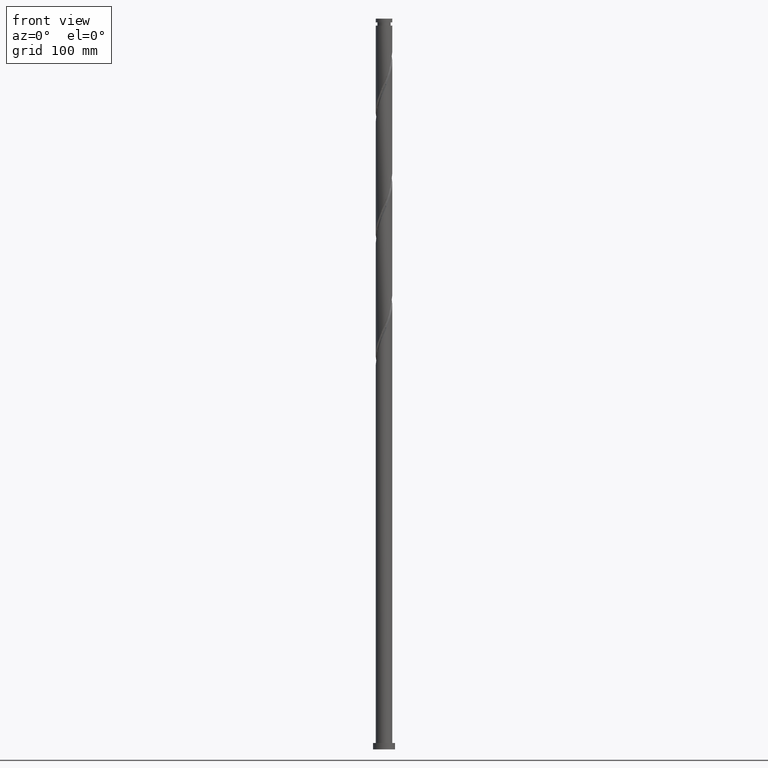
[diagram: clean part render]
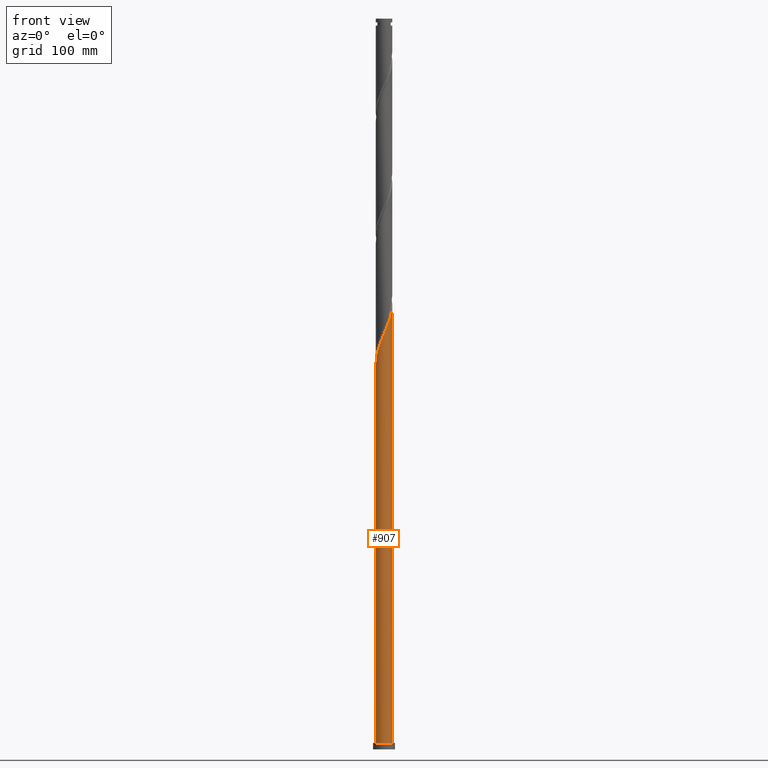
[diagram: same view with one face highlighted and labeled with its STEP entity id]
A machine part, front view. The second image highlights one B-rep face of the part: STEP entity #907.
In plain terms, the highlighted cylindrical surface (edge-blend (fillet) strip) has radius 9 mm, axis along (-0, -0, -1).
Its self-contained STEP definition (entity closure, byte-faithful):
#13 = CARTESIAN_POINT ( 'NONE',  ( -6.928210819915963548, -5.792758815519967186, 436.1767235916865388 ) ) ;
#29 = CARTESIAN_POINT ( 'NONE',  ( 8.087884598390568058, -4.017745958009479423, 478.2819867495812218 ) ) ;
#39 = LINE ( 'NONE', #51, #1264 ) ;
#51 = CARTESIAN_POINT ( 'NONE',  ( -9.000000000000001776, 0.000000000000000000, 800.0000000000000000 ) ) ;
#60 = VERTEX_POINT ( 'NONE', #1732 ) ;
#70 = CARTESIAN_POINT ( 'NONE',  ( -8.937772968675862018, -1.056510463936469968, 423.8960218373007365 ) ) ;
#81 = CARTESIAN_POINT ( 'NONE',  ( -8.641977487961812088, -2.513210118068413657, 427.4047937671251702 ) ) ;
#145 = EDGE_CURVE ( 'NONE', #2228, #1101, #341, .T. ) ;
#229 = EDGE_CURVE ( 'NONE', #2228, #60, #39, .T. ) ;
#230 = CARTESIAN_POINT ( 'NONE',  ( 6.830688933253277639, -5.860178213768877598, 473.0188288548444007 ) ) ;
#283 = CARTESIAN_POINT ( 'NONE',  ( -7.357693319166369150, -5.183082964905616485, 434.4223376267742651 ) ) ;
#341 =( BOUNDED_CURVE ( )  B_SPLINE_CURVE ( 2, ( #1922, #2028, #70, #800, #81, #928, #2083, #1652, #283, #13, #2040, #1477, #742, #1884, #1355, #442, #1730, #1662, #1170, #2271, #1372, #565, #2097, #1298, #974, #454, #1516, #1842, #935, #1337, #230, #1311, #2045, #29, #2222, #2034, #581, #395, #1689, #944, #1126 ),
 .UNSPECIFIED., .F., .T. ) 
 B_SPLINE_CURVE_WITH_KNOTS ( ( 3, 2, 2, 2, 2, 2, 2, 2, 2, 2, 2, 2, 2, 2, 2, 2, 2, 2, 2, 2, 3 ),
 ( 0.05452958095159557428, 0.05921052631578949121, 0.06578947368421050879, 0.07236842105263152636, 0.07894736842105265495, 0.08552631578947367252, 0.09210526315789469010, 0.09868421052631581869, 0.1052631578947368363, 0.1118421052631578538, 0.1184210526315789824, 0.1250000000000000000, 0.1315789473684210176, 0.1381578947368421462, 0.1447368421052631637, 0.1513157894736841813, 0.1578947368421053099, 0.1644736842105263275, 0.1710526315789473450, 0.1776315789473684736, 0.1795295809515956298 ),
 .UNSPECIFIED. ) 
 CURVE ( )  GEOMETRIC_REPRESENTATION_ITEM ( )  RATIONAL_B_SPLINE_CURVE ( ( 0.9078162034606223063, 0.9068816855934295207, 0.9090909090909511381, 0.9059859027333782011, 0.9090909090909511381, 0.9059859027333782011, 0.9090909090909511381, 0.9059859027333782011, 0.9090909090909511381, 0.9059859027333782011, 0.9090909090909511381, 0.9059859027333782011, 0.9090909090909511381, 0.9059859027333782011, 0.9090909090909511381, 0.9059859027333782011, 0.9090909090909511381, 0.9059859027333782011, 0.9090909090909511381, 0.9059859027333782011, 0.9090909090909511381, 0.9059859027333782011, 0.9090909090909511381, 0.9059859027333782011, 0.9090909090909511381, 0.9059859027333782011, 0.9090909090909511381, 0.9059859027333782011, 0.9090909090909511381, 0.9059859027333782011, 0.9090909090909511381, 0.9059859027333782011, 0.9090909090909511381, 0.9059859027333782011, 0.9090909090909511381, 0.9059859027333782011, 0.9090909090909511381, 0.9059859027333782011, 0.9090909090909511381, 0.9081951262308998185, 0.9078162034606223063 ) ) 
 REPRESENTATION_ITEM ( '' )  );
#395 = CARTESIAN_POINT ( 'NONE',  ( 8.954220682007752785, -1.173921563772247767, 485.2995306092304872 ) ) ;
#402 = CIRCLE ( 'NONE', #2202, 9.000000000000001776 ) ;
#442 = CARTESIAN_POINT ( 'NONE',  ( -3.336131102201621790, -8.392043203470052504, 446.7030393811602380 ) ) ;
#443 = CARTESIAN_POINT ( 'NONE',  ( 9.000000000000001776, 1.102182119232617911E-15, 7.000000000000000000 ) ) ;
#454 = CARTESIAN_POINT ( 'NONE',  ( 3.914726728146227686, -8.138247631027358153, 464.2468990302829184 ) ) ;
#523 = CARTESIAN_POINT ( 'NONE',  ( 9.000000000000010658, -2.597595984921478145E-15, 488.0651422680906535 ) ) ;
#528 = EDGE_LOOP ( 'NONE', ( #1033, #2178, #598, #1696 ) ) ;
#565 = CARTESIAN_POINT ( 'NONE',  ( 1.060131349976159765, -8.968404617365488107, 457.2293551706339940 ) ) ;
#581 = CARTESIAN_POINT ( 'NONE',  ( 8.796548163028864664, -1.902824325972774178, 483.5451446443181567 ) ) ;
#598 = ORIENTED_EDGE ( 'NONE', *, *, #229, .T. ) ;
#627 = EDGE_CURVE ( 'NONE', #60, #1976, #402, .T. ) ;
#742 = CARTESIAN_POINT ( 'NONE',  ( -5.276088912864429936, -7.291288348676742359, 441.4398814864234168 ) ) ;
#770 = DIRECTION ( 'NONE',  ( -0.000000000000000000, -0.000000000000000000, -1.000000000000000000 ) ) ;
#800 = CARTESIAN_POINT ( 'NONE',  ( -8.850228015680128735, -1.797115447169554736, 425.6504078022127828 ) ) ;
#807 = CYLINDRICAL_SURFACE ( 'NONE', #1360, 9.000000000000001776 ) ;
#907 = ADVANCED_FACE ( 'NONE', ( #1548 ), #807, .T. ) ;
#928 = CARTESIAN_POINT ( 'NONE',  ( -8.433726960243495441, -3.229304788967272355, 429.1591797320373871 ) ) ;
#935 = CARTESIAN_POINT ( 'NONE',  ( 5.772973607274883179, -6.904547467409275718, 469.5100569250198532 ) ) ;
#944 = CARTESIAN_POINT ( 'NONE',  ( 9.000000000000012434, -0.2146260082065028496, 487.5588192496505826 ) ) ;
#974 = CARTESIAN_POINT ( 'NONE',  ( 3.218275075876959157, -8.404921506830946853, 462.4925130653707583 ) ) ;
#1033 = ORIENTED_EDGE ( 'NONE', *, *, #1850, .F. ) ;
#1101 = VERTEX_POINT ( 'NONE', #523 ) ;
#1126 = CARTESIAN_POINT ( 'NONE',  ( 9.000000000000010658, -2.597595984921478145E-15, 488.0651422680906535 ) ) ;
#1170 = CARTESIAN_POINT ( 'NONE',  ( -1.169912026461562116, -8.923637478648537069, 451.9661972758971729 ) ) ;
#1264 = VECTOR ( 'NONE', #770, 1000.000000000000000 ) ;
#1277 = LINE ( 'NONE', #2227, #1588 ) ;
#1298 = CARTESIAN_POINT ( 'NONE',  ( 2.521823423607686632, -8.671595382634528448, 460.7381271004584846 ) ) ;
#1311 = CARTESIAN_POINT ( 'NONE',  ( 7.316277144428680046, -5.294171191593203929, 474.7732148197566744 ) ) ;
#1337 = CARTESIAN_POINT ( 'NONE',  ( 6.345100722077872568, -6.426185235944554819, 471.2644428899320133 ) ) ;
#1355 = CARTESIAN_POINT ( 'NONE',  ( -4.004023318592473402, -8.060260371983519079, 444.9486534162478506 ) ) ;
#1360 = AXIS2_PLACEMENT_3D ( 'NONE', #1388, #1400, #1933 ) ;
#1372 = CARTESIAN_POINT ( 'NONE',  ( 0.3148265033248102696, -8.994491885193095726, 455.4749692057217203 ) ) ;
#1388 = CARTESIAN_POINT ( 'NONE',  ( 0.000000000000000000, 0.000000000000000000, 800.0000000000000000 ) ) ;
#1400 = DIRECTION ( 'NONE',  ( -0.000000000000000000, -0.000000000000000000, -1.000000000000000000 ) ) ;
#1463 = DIRECTION ( 'NONE',  ( 0.000000000000000000, 0.000000000000000000, 1.000000000000000000 ) ) ;
#1477 = CARTESIAN_POINT ( 'NONE',  ( -5.880262290745535303, -6.854099156856499064, 439.6854955215110863 ) ) ;
#1516 = CARTESIAN_POINT ( 'NONE',  ( 4.557786610309060293, -7.760578664950677386, 466.0012849951953058 ) ) ;
#1548 = FACE_OUTER_BOUND ( 'NONE', #528, .T. ) ;
#1588 = VECTOR ( 'NONE', #2026, 1000.000000000000000 ) ;
#1652 = CARTESIAN_POINT ( 'NONE',  ( -7.787175818416772088, -4.573407114291269338, 432.6679516618619914 ) ) ;
#1662 = CARTESIAN_POINT ( 'NONE',  ( -1.909345709596586449, -8.826695804276367241, 450.2118113109847286 ) ) ;
#1689 = CARTESIAN_POINT ( 'NONE',  ( 8.989769301839674043, -0.4290080415344302289, 487.0539165741425904 ) ) ;
#1696 = ORIENTED_EDGE ( 'NONE', *, *, #627, .T. ) ;
#1730 = CARTESIAN_POINT ( 'NONE',  ( -2.622738405899103675, -8.609369503873207208, 448.4574253460723980 ) ) ;
#1732 = CARTESIAN_POINT ( 'NONE',  ( -9.000000000000001776, 0.000000000000000000, 7.000000000000000000 ) ) ;
#1842 = CARTESIAN_POINT ( 'NONE',  ( 5.200846492471891125, -7.382909698873995730, 467.7556709601076932 ) ) ;
#1850 = EDGE_CURVE ( 'NONE', #1101, #1976, #1277, .T. ) ;
#1884 = CARTESIAN_POINT ( 'NONE',  ( -4.671915534983323681, -7.728477540496988318, 443.1942674513356337 ) ) ;
#1922 = CARTESIAN_POINT ( 'NONE',  ( -9.000000000000010658, 7.464356278509994737E-16, 421.3984756014240816 ) ) ;
#1933 = DIRECTION ( 'NONE',  ( -1.000000000000000000, 0.000000000000000000, 0.000000000000000000 ) ) ;
#1976 = VERTEX_POINT ( 'NONE', #443 ) ;
#2026 = DIRECTION ( 'NONE',  ( -0.000000000000000000, -0.000000000000000000, -1.000000000000000000 ) ) ;
#2028 = CARTESIAN_POINT ( 'NONE',  ( -9.000000000000010658, -0.5300877757809080437, 422.6490027156094129 ) ) ;
#2034 = CARTESIAN_POINT ( 'NONE',  ( 8.638875644049969438, -2.631727088173299034, 481.7907586794058261 ) ) ;
#2040 = CARTESIAN_POINT ( 'NONE',  ( -6.404236555330750313, -6.323428986188232237, 437.9311095565989262 ) ) ;
#2045 = CARTESIAN_POINT ( 'NONE',  ( 7.702080871409623164, -4.655958574801344341, 476.5276007846690050 ) ) ;
#2083 = CARTESIAN_POINT ( 'NONE',  ( -8.110451389330130212, -3.901355951629270624, 430.9135656969496608 ) ) ;
#2097 = CARTESIAN_POINT ( 'NONE',  ( 1.790977386791925419, -8.820000000000007390, 458.9837411355462677 ) ) ;
#2178 = ORIENTED_EDGE ( 'NONE', *, *, #145, .F. ) ;
#2191 = CARTESIAN_POINT ( 'NONE',  ( 0.000000000000000000, 0.000000000000000000, 7.000000000000000000 ) ) ;
#2202 = AXIS2_PLACEMENT_3D ( 'NONE', #2191, #1463, #2358 ) ;
#2222 = CARTESIAN_POINT ( 'NONE',  ( 8.363380121220270524, -3.324736523091387230, 480.0363727144935524 ) ) ;
#2227 = CARTESIAN_POINT ( 'NONE',  ( 9.000000000000001776, 1.102182119232617911E-15, 800.0000000000000000 ) ) ;
#2228 = VERTEX_POINT ( 'NONE', #2313 ) ;
#2271 = CARTESIAN_POINT ( 'NONE',  ( -0.4304783433265422232, -9.020579153020705121, 453.7205832408092760 ) ) ;
#2313 = CARTESIAN_POINT ( 'NONE',  ( -9.000000000000010658, 7.464356278509994737E-16, 421.3984756014240816 ) ) ;
#2358 = DIRECTION ( 'NONE',  ( 1.000000000000000000, 0.000000000000000000, 0.000000000000000000 ) ) ;